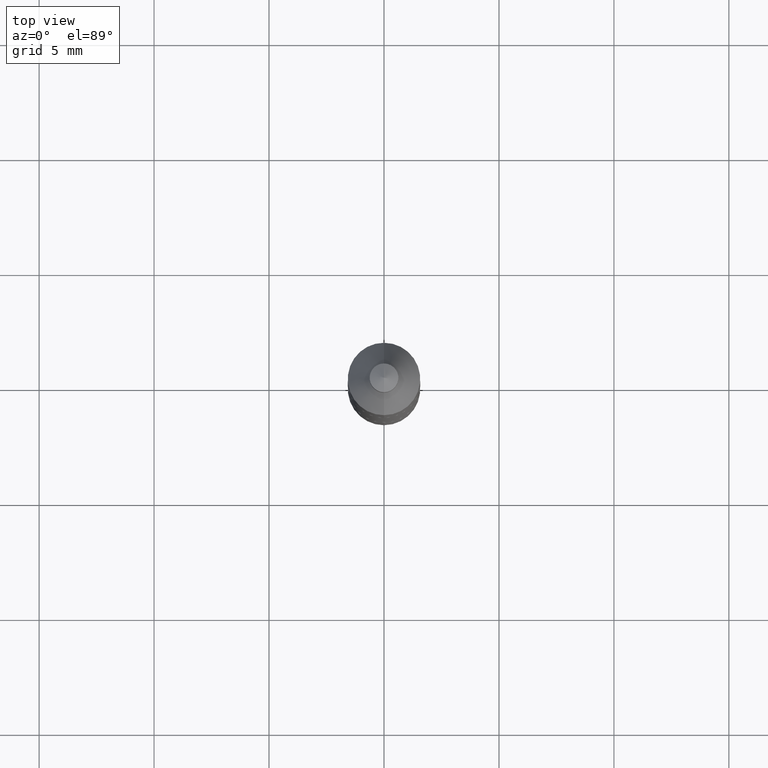
[diagram: clean part render]
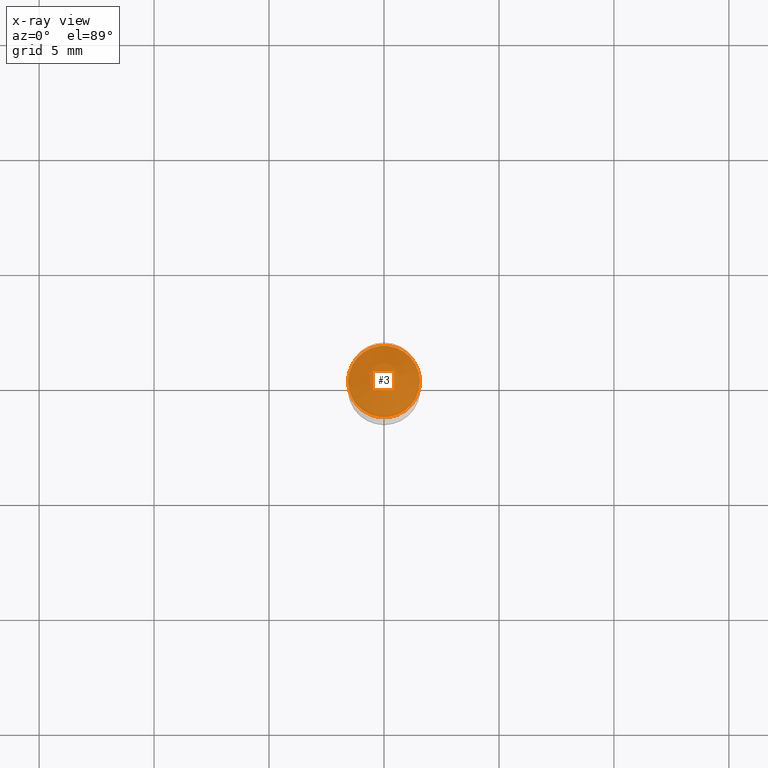
[diagram: x-ray — body ghosted, one internal face saturated and labeled with its STEP entity id]
A machine part, top view, then the same camera in x-ray: the body is ghosted and one INTERNAL B-rep face — a face not visible from any outside direction — is saturated and labeled: STEP entity #3.
In plain terms, the highlighted planar face has unit normal (-0, 0, 1).
Its self-contained STEP definition (entity closure, byte-faithful):
#3 = ADVANCED_FACE ( 'NONE', ( #360 ), #700, .T. ) ;
#17 = DIRECTION ( 'NONE',  ( 1.000000000000000000, -6.982962677686265922E-15, 0.000000000000000000 ) ) ;
#44 = VERTEX_POINT ( 'NONE', #542 ) ;
#82 = CARTESIAN_POINT ( 'NONE',  ( -5.624578254225812687E-30, 8.030407079339232947E-16, 0.2299999999999999267 ) ) ;
#106 = DIRECTION ( 'NONE',  ( -1.000000000000000000, 6.982962677686265922E-15, -4.876176775795935793E-29 ) ) ;
#110 = CARTESIAN_POINT ( 'NONE',  ( 0.06150000000000001993, 3.735885032562177875E-16, 0.2299999999999999267 ) ) ;
#138 = DIRECTION ( 'NONE',  ( -2.445468806185136597E-29, 3.491481338843145583E-15, 1.000000000000000000 ) ) ;
#148 = ORIENTED_EDGE ( 'NONE', *, *, #685, .T. ) ;
#153 = ORIENTED_EDGE ( 'NONE', *, *, #198, .T. ) ;
#198 = EDGE_CURVE ( 'NONE', #565, #44, #594, .T. ) ;
#337 = DIRECTION ( 'NONE',  ( -2.445468806185136597E-29, 3.491481338843145583E-15, 1.000000000000000000 ) ) ;
#348 = CARTESIAN_POINT ( 'NONE',  ( -5.624578254225812687E-30, 8.030407079339232947E-16, 0.2299999999999999267 ) ) ;
#360 = FACE_OUTER_BOUND ( 'NONE', #367, .T. ) ;
#367 = EDGE_LOOP ( 'NONE', ( #153, #148 ) ) ;
#389 = CIRCLE ( 'NONE', #526, 0.06150000000000001993 ) ;
#421 = CARTESIAN_POINT ( 'NONE',  ( -5.624578254225812687E-30, 8.030407079339232947E-16, 0.2299999999999999267 ) ) ;
#465 = AXIS2_PLACEMENT_3D ( 'NONE', #348, #138, #612 ) ;
#526 = AXIS2_PLACEMENT_3D ( 'NONE', #82, #337, #17 ) ;
#542 = CARTESIAN_POINT ( 'NONE',  ( -0.06150000000000001993, 1.225803588961604704E-15, 0.2299999999999999267 ) ) ;
#557 = AXIS2_PLACEMENT_3D ( 'NONE', #421, #586, #106 ) ;
#565 = VERTEX_POINT ( 'NONE', #110 ) ;
#586 = DIRECTION ( 'NONE',  ( -2.438088387897960049E-29, 3.491481338843145188E-15, 1.000000000000000000 ) ) ;
#594 = CIRCLE ( 'NONE', #465, 0.06150000000000001993 ) ;
#612 = DIRECTION ( 'NONE',  ( 1.000000000000000000, -6.982962677686265922E-15, 0.000000000000000000 ) ) ;
#685 = EDGE_CURVE ( 'NONE', #44, #565, #389, .T. ) ;
#700 = PLANE ( 'NONE',  #557 ) ;